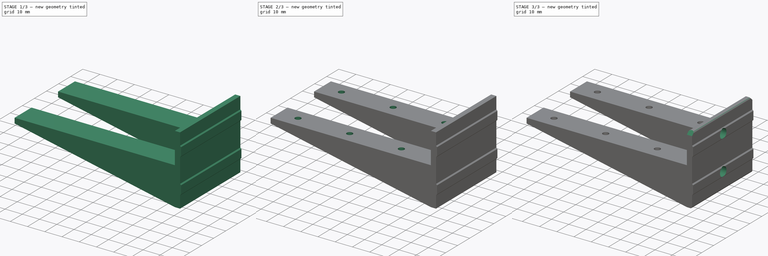
[diagram: build sequence overview — one tinted view per stage of 3, left to right]
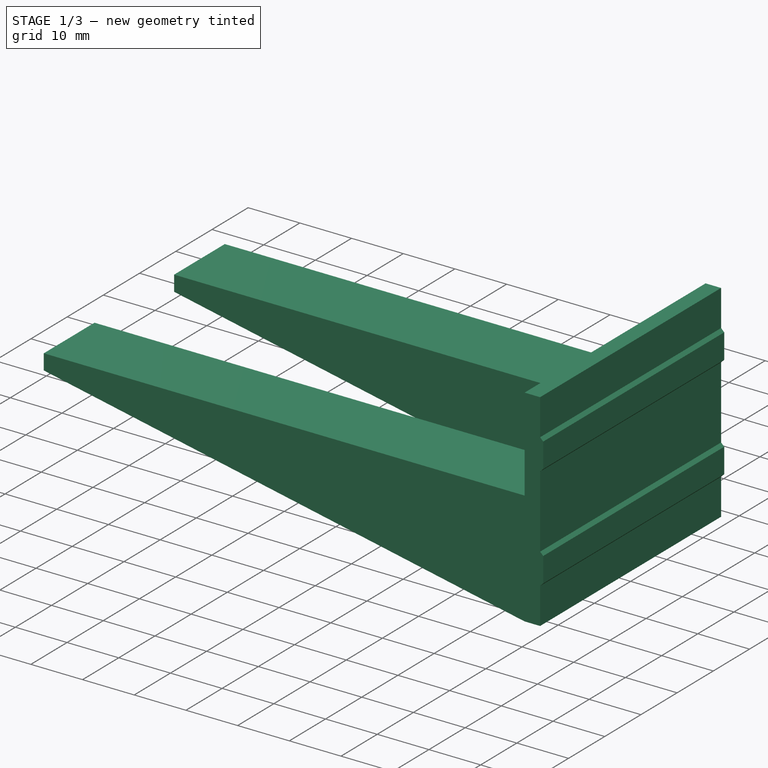
[diagram: stage 1 of 3 — iso view after this stage's code; geometry added in this stage tinted green]
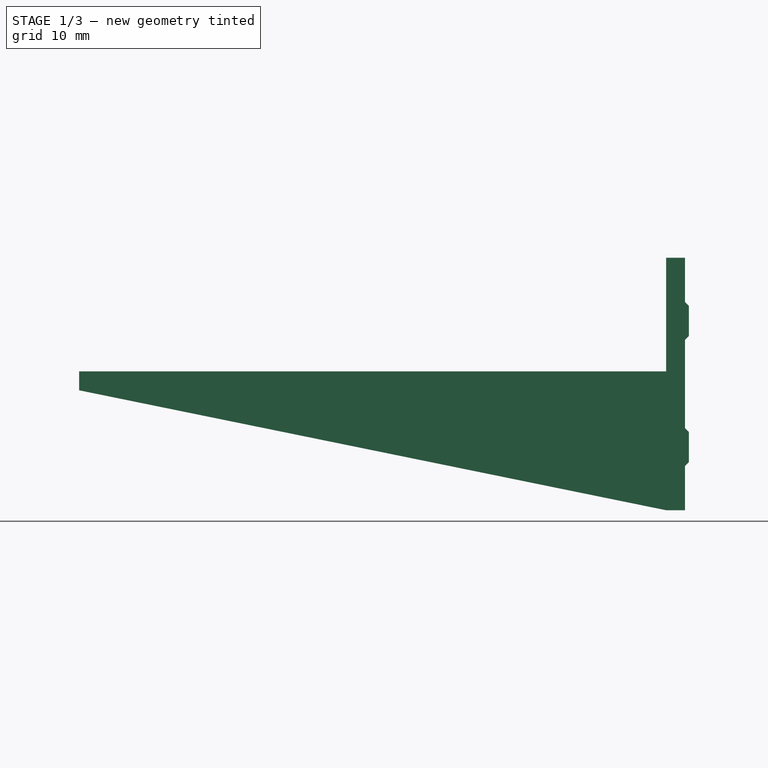
[diagram: stage 1 of 3 — front view after this stage's code; geometry added in this stage tinted green]
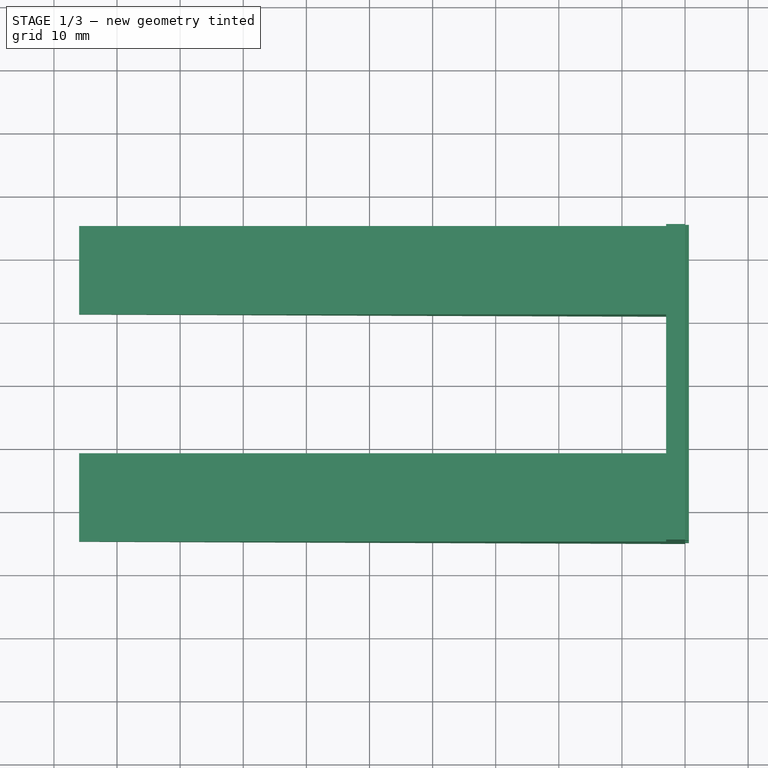
[diagram: stage 1 of 3 — top view after this stage's code; geometry added in this stage tinted green]
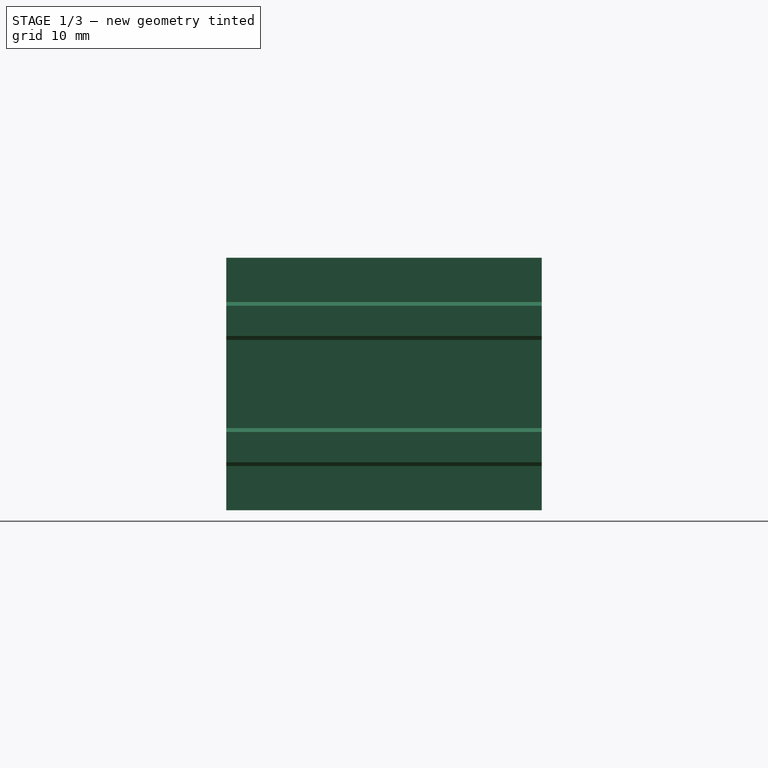
[diagram: stage 1 of 3 — right view after this stage's code; geometry added in this stage tinted green]
FCSTD DOCUMENT  (FreeCAD 0.18R4 (GitTag))
Label: _Electr_Display_Case_Holder
License: CreativeCommons Attribution
LicenseURL: http://creativecommons.org/licenses/by/4.0/
objects: Sketcher::SketchObject×6, PartDesign::Pocket×4, PartDesign::Pad×2, PartDesign::Chamfer×1, PartDesign::Fillet×1, PartDesign::Body×1
note: 21 computed .brp shape members not serialized (recipe doc carries the construction recipe); baked Part::Feature solids carry a one-line shape summary decoded from their .brp

FEATURE [Sketcher::SketchObject] Sketch001
  MapMode = 5
  Placement = pos=(0,0,0) rot=(1,0,0;1.5708rad)
  Support = -> [XZ_Plane]
  sketch-geometry (7):
    g0: LineSegment StartX=-3 StartY=-40 StartZ=0 EndX=-96 EndY=-21 EndZ=0
    g1: LineSegment StartX=-97 StartY=-40 StartZ=0 EndX=-3 EndY=-40 EndZ=0
    g2: LineSegment StartX=-97 StartY=-40 StartZ=0 EndX=-97 EndY=0 EndZ=0
    g3: LineSegment StartX=-97 StartY=0 StartZ=0 EndX=-3 EndY=0 EndZ=0
    g4: LineSegment StartX=-3 StartY=0 StartZ=0 EndX=-3 EndY=-18 EndZ=0
    g5: LineSegment StartX=-3 StartY=-18 StartZ=0 EndX=-96 EndY=-18 EndZ=0
    g6: LineSegment StartX=-96 StartY=-18 StartZ=0 EndX=-96 EndY=-21 EndZ=0
  constraints (21):
    c: Coincident(g1,g0)
    c: Horizontal(g1)
    c: DistanceY(g1,g-1) = 40
    c: DistanceX(g1,g1) = 94
    c: DistanceX(g0,g-1) = 3
    c: Coincident(g1,g2)
    c: Vertical(g2)
    c: Coincident(g2,g3)
    c: Horizontal(g3)
    c: Coincident(g3,g4)
    c: Vertical(g4)
    c: Coincident(g4,g5)
    c: Coincident(g5,g6)
    c: Coincident(g6,g0)
    c: Vertical(g6)
    c: PointOnObject(g2,g-1)
    c: Horizontal(g5)
    c: Vertical(g0,g4)
    c: DistanceY(g6,g6) = 3
    c: DistanceX(g5,g5) = 93
    c: DistanceY(g4,g4) = 18
FEATURE [Sketcher::SketchObject] Sketch
  MapMode = 5
  Support = -> [XY_Plane]
  sketch-geometry (8):
    g0: LineSegment StartX=0 StartY=25 StartZ=0 EndX=-96 EndY=25 EndZ=0
    g1: LineSegment StartX=-96 StartY=25 StartZ=0 EndX=-96 EndY=11 EndZ=0
    g2: LineSegment StartX=-96 StartY=11 StartZ=0 EndX=-3 EndY=11 EndZ=0
    g3: LineSegment StartX=-3 StartY=11 StartZ=0 EndX=-3 EndY=-11 EndZ=0
    g4: LineSegment StartX=-3 StartY=-11 StartZ=0 EndX=-96 EndY=-11 EndZ=0
    g5: LineSegment StartX=-96 StartY=-11 StartZ=0 EndX=-96 EndY=-25 EndZ=0
    g6: LineSegment StartX=-96 StartY=-25 StartZ=0 EndX=0 EndY=-25 EndZ=0
    g7: LineSegment StartX=0 StartY=-25 StartZ=0 EndX=0 EndY=25 EndZ=0
  constraints (23):
    c: Horizontal(g0)
    c: Coincident(g0,g1)
    c: Coincident(g1,g2)
    c: Horizontal(g2)
    c: Coincident(g2,g3)
    c: Coincident(g3,g4)
    c: Coincident(g4,g5)
    c: Coincident(g5,g6)
    c: Horizontal(g6)
    c: Coincident(g6,g7)
    c: Coincident(g7,g0)
    c: Horizontal(g4)
    c: Vertical(g5)
    c: Vertical(g3)
    c: Vertical(g1)
    c: Equal(g5,g1)
    c: Equal(g6,g0)
    c: DistanceY(g5,g0) = 50
    c: DistanceY(g1,g1) = 14
    c: DistanceX(g0,g0) = 96
    c: Symmetric(g6,g0,g-1)
    c: DistanceX(g2,g0) = 3
    c: PointOnObject(g-1,g7)
FEATURE [PartDesign::Pad] Pad
  Length = 40
  Length2 = 100
  Profile = -> Sketch
  Reversed = true
  Type = 0
FEATURE [Sketcher::SketchObject] Sketch002
  AttachmentOffset = pos=(0,0,-3) rot=(0,0,1;0rad)
  MapMode = 5
  Placement = pos=(-3,7e-16,-7e-16) rot=(0.57735,0.57735,0.57735;2.0944rad)
  Support = -> [YZ_Plane]
  sketch-geometry (8):
    g0: LineSegment StartX=-22 StartY=-41 StartZ=0 EndX=-22 EndY=-21 EndZ=0
    g1: LineSegment StartX=-22 StartY=-21 StartZ=0 EndX=-14 EndY=-21 EndZ=0
    g2: LineSegment StartX=-14 StartY=-21 StartZ=0 EndX=-14 EndY=-40 EndZ=0
    g3: LineSegment StartX=-14 StartY=-40 StartZ=0 EndX=14 EndY=-40 EndZ=0
    g4: LineSegment StartX=14 StartY=-40 StartZ=0 EndX=14 EndY=-21 EndZ=0
    g5: LineSegment StartX=14 StartY=-21 StartZ=0 EndX=22 EndY=-21 EndZ=0
    g6: LineSegment StartX=22 StartY=-21 StartZ=0 EndX=22 EndY=-41 EndZ=0
    g7: LineSegment StartX=22 StartY=-41 StartZ=0 EndX=-22 EndY=-41 EndZ=0
  constraints (23):
    c: Vertical(g0)
    c: Coincident(g0,g1)
    c: Coincident(g1,g2)
    c: Vertical(g2)
    c: Coincident(g2,g3)
    c: Horizontal(g3)
    c: Coincident(g3,g4)
    c: Vertical(g4)
    c: Coincident(g4,g5)
    c: Horizontal(g5)
    c: Coincident(g5,g6)
    c: Vertical(g6)
    c: Coincident(g6,g7)
    c: Coincident(g7,g0)
    c: Horizontal(g1)
    c: Symmetric(g6,g0,g-2)
    c: Equal(g1,g5)
    c: Equal(g0,g6)
    c: DistanceY(g3,g-1) = 40
    c: DistanceY(g6,g-1) = 41
    c: DistanceX(g0,g5) = 44
    c: DistanceX(g1,g4) = 28
    c: DistanceY(g0,g-1) = 21
FEATURE [Sketcher::SketchObject] Sketch003
  MapMode = 5
  Support = -> [XY_Plane]
  sketch-geometry (11):
    g0: LineSegment [constr] StartX=-85 StartY=18 StartZ=0 EndX=-25 EndY=18 EndZ=0
    g1: LineSegment [constr] StartX=-25 StartY=18 StartZ=0 EndX=-25 EndY=-18 EndZ=0
    g2: LineSegment [constr] StartX=-25 StartY=-18 StartZ=0 EndX=-85 EndY=-18 EndZ=0
    g3: LineSegment [constr] StartX=-85 StartY=-18 StartZ=0 EndX=-85 EndY=18 EndZ=0
    g4: LineSegment [constr] StartX=-55 StartY=18 StartZ=0 EndX=-55 EndY=-18 EndZ=0
    g5: Circle CenterX=-85 CenterY=18 CenterZ=0 NormalX=0 NormalY=0 NormalZ=1 AngleXU=0 Radius=1.7
    g6: Circle CenterX=-25 CenterY=18 CenterZ=0 NormalX=0 NormalY=0 NormalZ=1 AngleXU=0 Radius=1.7
    g7: Circle CenterX=-25 CenterY=-18 CenterZ=0 NormalX=0 NormalY=0 NormalZ=1 AngleXU=0 Radius=1.7
    g8: Circle CenterX=-85 CenterY=-18 CenterZ=0 NormalX=0 NormalY=0 NormalZ=1 AngleXU=0 Radius=1.7
    g9: Circle CenterX=-55 CenterY=-18 CenterZ=0 NormalX=0 NormalY=0 NormalZ=1 AngleXU=0 Radius=1.7
    g10: Circle CenterX=-55 CenterY=18 CenterZ=0 NormalX=0 NormalY=0 NormalZ=1 AngleXU=0 Radius=1.7
  constraints (26):
    c: Coincident(g0,g1)
    c: Coincident(g1,g2)
    c: Coincident(g2,g3)
    c: Coincident(g3,g0)
    c: Horizontal(g0)
    c: Horizontal(g2)
    c: Vertical(g3)
    c: PointOnObject(g4,g0)
    c: PointOnObject(g4,g2)
    c: Symmetric(g1,g2,g4)
    c: DistanceX(g4,g-1) = 55
    c: DistanceX(g0,g0) = 60
    c: Symmetric(g1,g0,g-1)
    c: DistanceY(g2,g0) = 36
    c: Coincident(g5,g0)
    c: Coincident(g6,g0)
    c: Coincident(g7,g1)
    c: Coincident(g8,g2)
    c: Coincident(g9,g4)
    c: Coincident(g10,g4)
    c: Equal(g5,g10)
    c: Equal(g10,g6)
    c: Equal(g6,g7)
    c: Equal(g7,g9)
    c: Equal(g9,g8)
    c: Diameter(g6) = 3.4
FEATURE [Sketcher::SketchObject] Sketch004
  MapMode = 5
  Placement = pos=(0,0,0) rot=(1,0,0;1.5708rad)
  Support = -> [XZ_Plane]
  sketch-geometry (10):
    g0: LineSegment StartX=0 StartY=-7 StartZ=0 EndX=0 EndY=-13 EndZ=0
    g1: LineSegment StartX=0 StartY=-13 StartZ=0 EndX=0.6 EndY=-12.4 EndZ=0
    g2: LineSegment StartX=0.6 StartY=-12.4 StartZ=0 EndX=0.6 EndY=-7.6 EndZ=0
    g3: LineSegment StartX=0.6 StartY=-7.6 StartZ=0 EndX=0 EndY=-7 EndZ=0
    g4: LineSegment StartX=0 StartY=-27 StartZ=0 EndX=0 EndY=-33 EndZ=0
    g5: LineSegment StartX=0 StartY=-33 StartZ=0 EndX=0.6 EndY=-32.4 EndZ=0
    g6: LineSegment StartX=0.6 StartY=-32.4 StartZ=0 EndX=0.6 EndY=-27.6 EndZ=0
    g7: LineSegment StartX=0.6 StartY=-27.6 StartZ=0 EndX=0 EndY=-27 EndZ=0
    g8: LineSegment [constr] StartX=0 StartY=-10 StartZ=0 EndX=0.6 EndY=-10 EndZ=0
    g9: LineSegment [constr] StartX=0 StartY=-30 StartZ=0 EndX=0.6 EndY=-30 EndZ=0
  constraints (28):
    c: Vertical(g0)
    c: Coincident(g0,g1)
    c: Coincident(g1,g2)
    c: Coincident(g2,g3)
    c: Coincident(g3,g0)
    c: Vertical(g4)
    c: Coincident(g4,g5)
    c: Coincident(g5,g6)
    c: Coincident(g6,g7)
    c: Coincident(g7,g4)
    c: Vertical(g4,g0)
    c: Equal(g0,g4)
    c: PointOnObject(g8,g0)
    c: PointOnObject(g8,g2)
    c: PointOnObject(g9,g4)
    c: PointOnObject(g9,g6)
    c: Symmetric(g0,g0,g8)
    c: Symmetric(g4,g4,g9)
    c: Symmetric(g5,g6,g9)
    c: Symmetric(g1,g2,g8)
    c: Equal(g8,g9)
    c: DistanceX(g4,g5) = 0.6
    c: DistanceY(g4,g4) = 6
    c: Perpendicular(g3,g1)
    c: Perpendicular(g7,g5)
    c: PointOnObject(g4,g-2)
    c: DistanceY(g9,g8) = 20
    c: DistanceY(g8,g-1) = 10
FEATURE [PartDesign::Pad] Pad001
  BaseFeature = -> Pad
  Length = 50
  Length2 = 100
  Midplane = true
  Profile = -> Sketch004
  Type = 0
FEATURE [PartDesign::Pocket] Pocket
  BaseFeature = -> Pad001
  Length = 5
  Length2 = 100
  Midplane = true
  Profile = -> Sketch001
  Type = 1
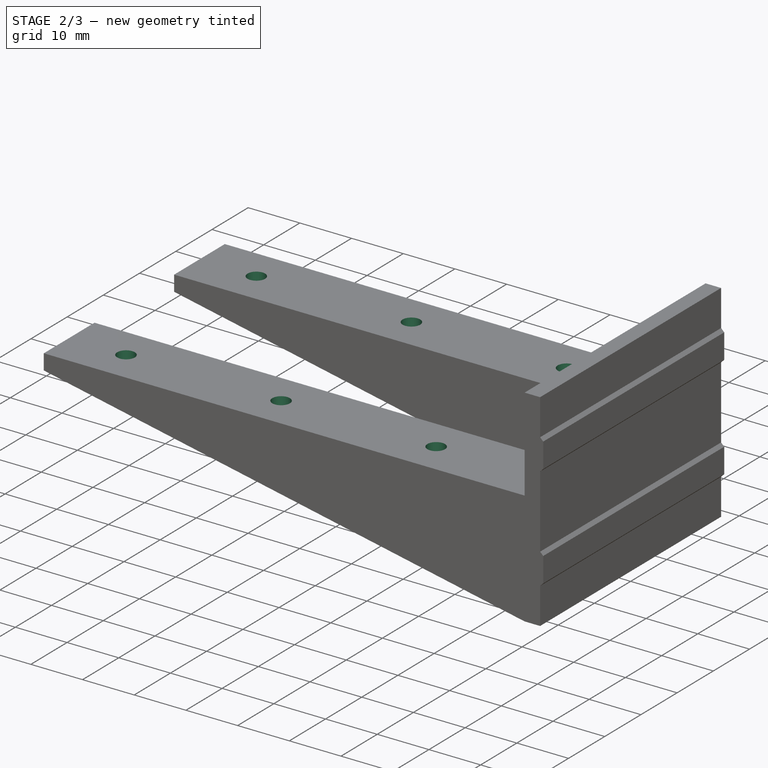
[diagram: stage 2 of 3 — iso view after this stage's code; geometry added in this stage tinted green]
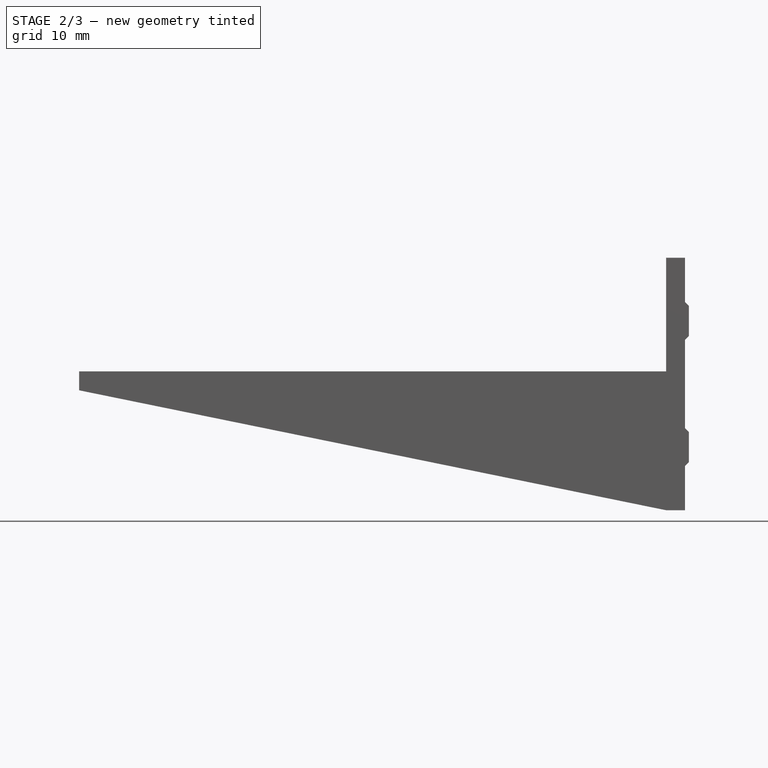
[diagram: stage 2 of 3 — front view after this stage's code; geometry added in this stage tinted green]
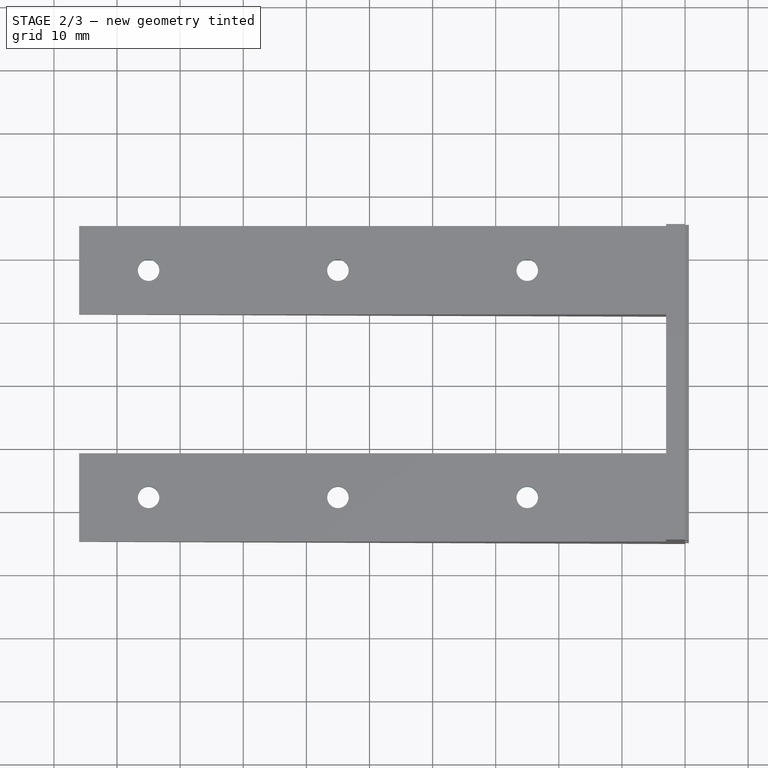
[diagram: stage 2 of 3 — top view after this stage's code; geometry added in this stage tinted green]
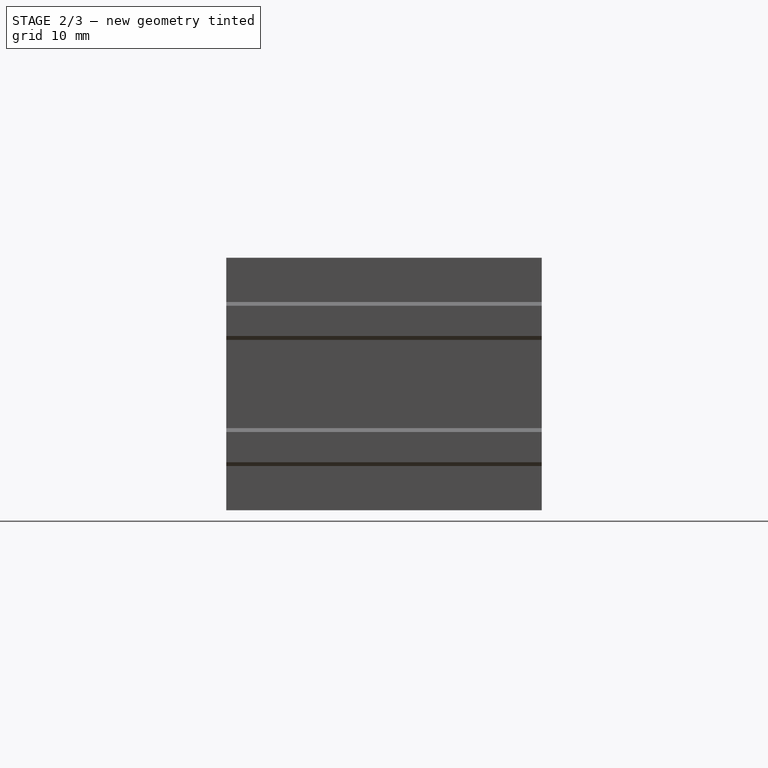
[diagram: stage 2 of 3 — right view after this stage's code; geometry added in this stage tinted green]
FEATURE [PartDesign::Pocket] Pocket001
  BaseFeature = -> Pocket
  Length = 93
  Length2 = 100
  Profile = -> Sketch002
  Type = 0
FEATURE [PartDesign::Pocket] Pocket002
  BaseFeature = -> Pocket001
  Length = 5
  Length2 = 100
  Profile = -> Sketch003
  Type = 1
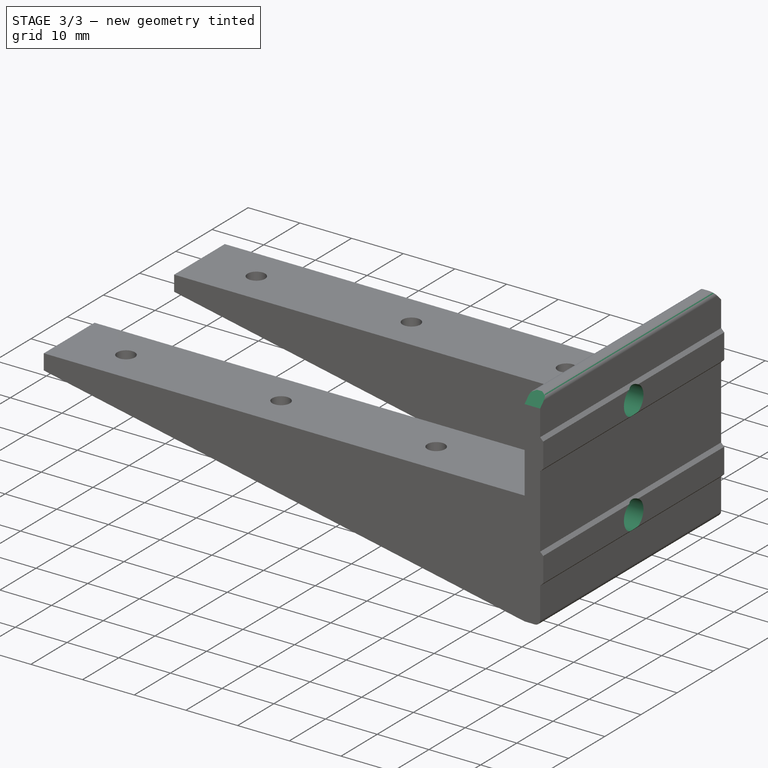
[diagram: stage 3 of 3 — iso view after this stage's code; geometry added in this stage tinted green]
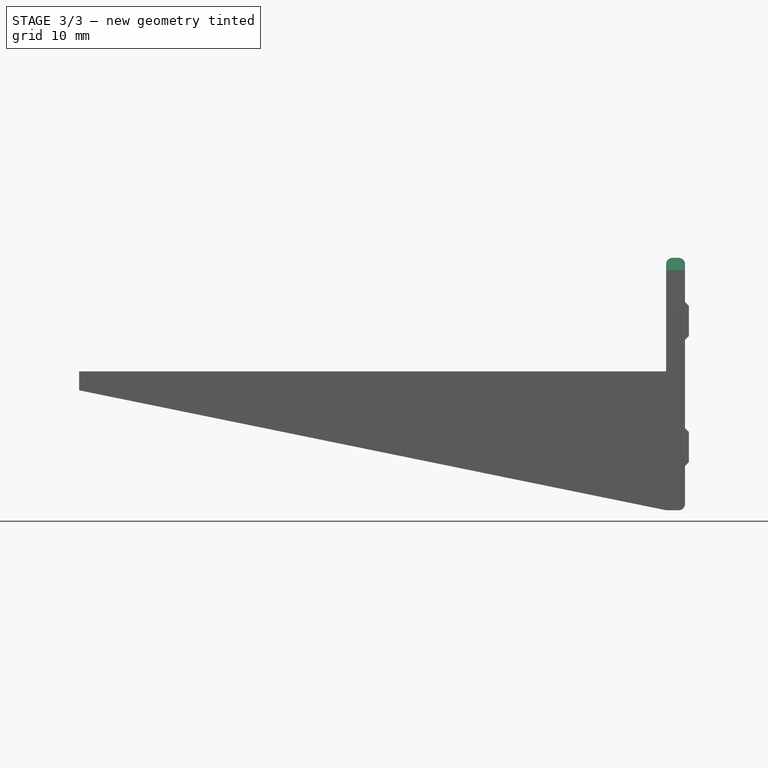
[diagram: stage 3 of 3 — front view after this stage's code; geometry added in this stage tinted green]
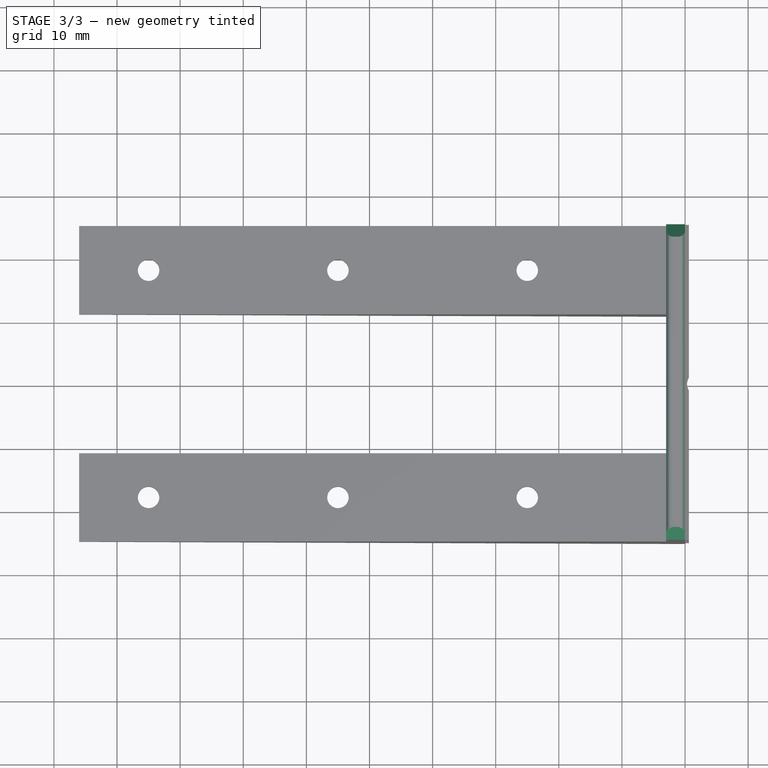
[diagram: stage 3 of 3 — top view after this stage's code; geometry added in this stage tinted green]
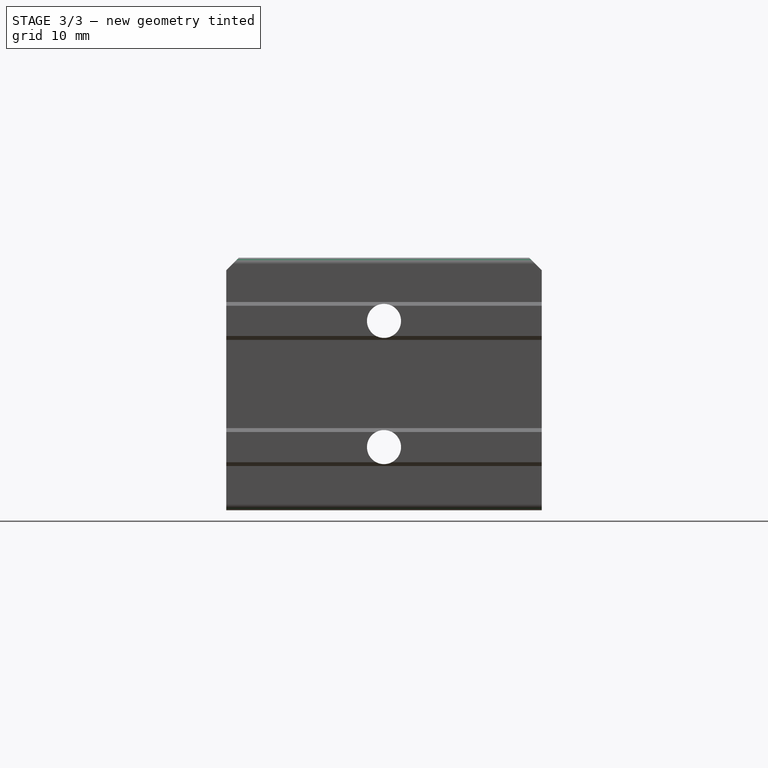
[diagram: stage 3 of 3 — right view after this stage's code; geometry added in this stage tinted green]
FEATURE [Sketcher::SketchObject] Sketch005
  AttachmentOffset = pos=(0,0,0.6) rot=(0,0,1;0rad)
  MapMode = 5
  Placement = pos=(0.6,-1e-16,1e-16) rot=(0.57735,0.57735,0.57735;2.0944rad)
  Support = -> [YZ_Plane]
  sketch-geometry (2):
    g0: Circle CenterX=0 CenterY=-10 CenterZ=0 NormalX=0 NormalY=0 NormalZ=1 AngleXU=0 Radius=2.7
    g1: Circle CenterX=0 CenterY=-30 CenterZ=0 NormalX=0 NormalY=0 NormalZ=1 AngleXU=0 Radius=2.7
  constraints (6):
    c: PointOnObject(g0,g-2)
    c: PointOnObject(g1,g-2)
    c: Diameter(g1) = 5.4
    c: Equal(g1,g0)
    c: DistanceY(g1,g0) = 20
    c: DistanceY(g0,g-1) = 10
FEATURE [PartDesign::Pocket] Pocket003
  BaseFeature = -> Pocket002
  Length = 5
  Length2 = 100
  Profile = -> Sketch005
  Type = 1
FEATURE [PartDesign::Chamfer] Chamfer
  Base = -> Pocket003 [Edge1,Edge13]
  BaseFeature = -> Pocket003
  Size = 2
FEATURE [PartDesign::Fillet] Fillet
  Base = -> Chamfer [Edge23,Edge39,Edge54,Edge44]
  BaseFeature = -> Chamfer
  Radius = 1
FEATURE [PartDesign::Body] Body  label="Display_Case_Holder"
  Group = -> [Sketch,Pad,Sketch001,Sketch002,Sketch004,Pad001,Pocket,Pocket001,Sketch003,Pocket002,Sketch005,Pocket003,Chamfer,Fillet]
  Origin = -> Origin
  Tip = -> Fillet
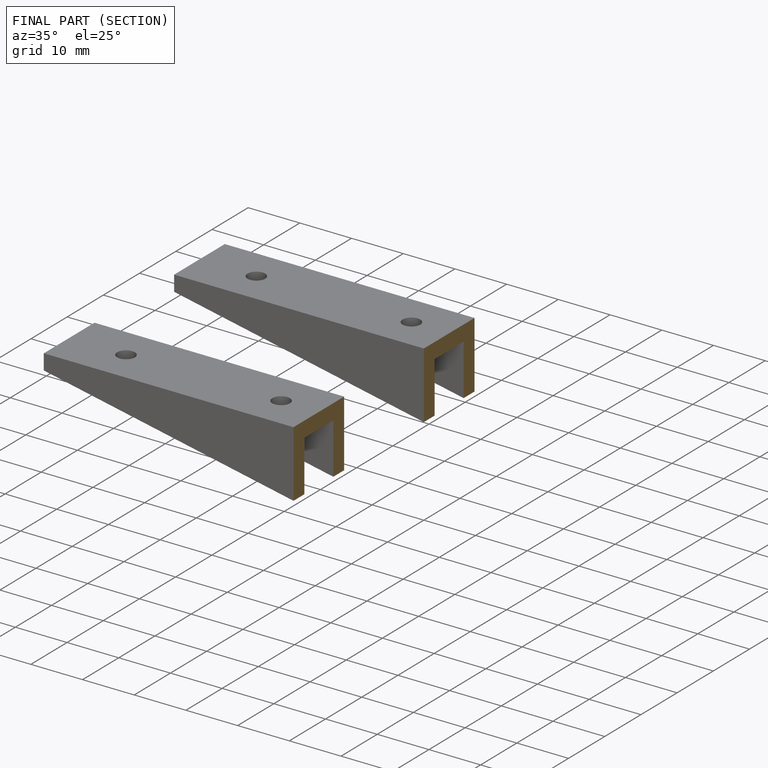
[diagram: finished part — half-section view (interior)]
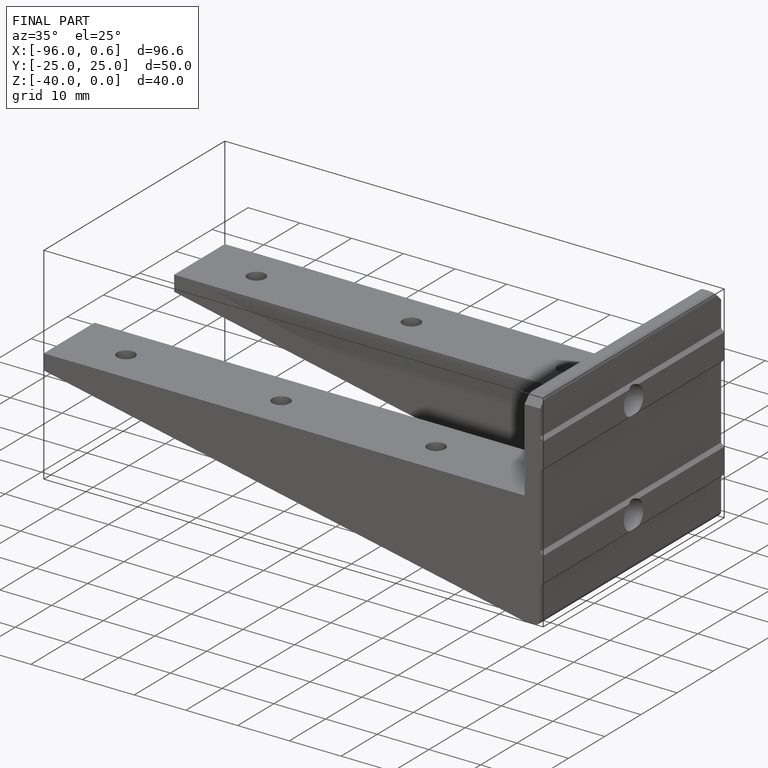
[diagram: finished part — iso view with bounding-box wireframe]
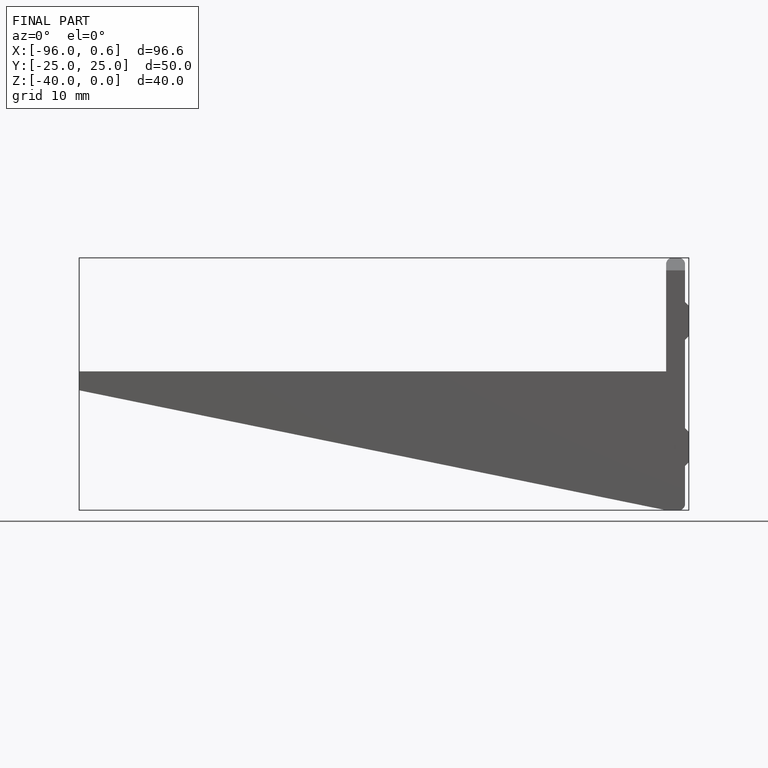
[diagram: finished part — front view with bounding-box wireframe]
